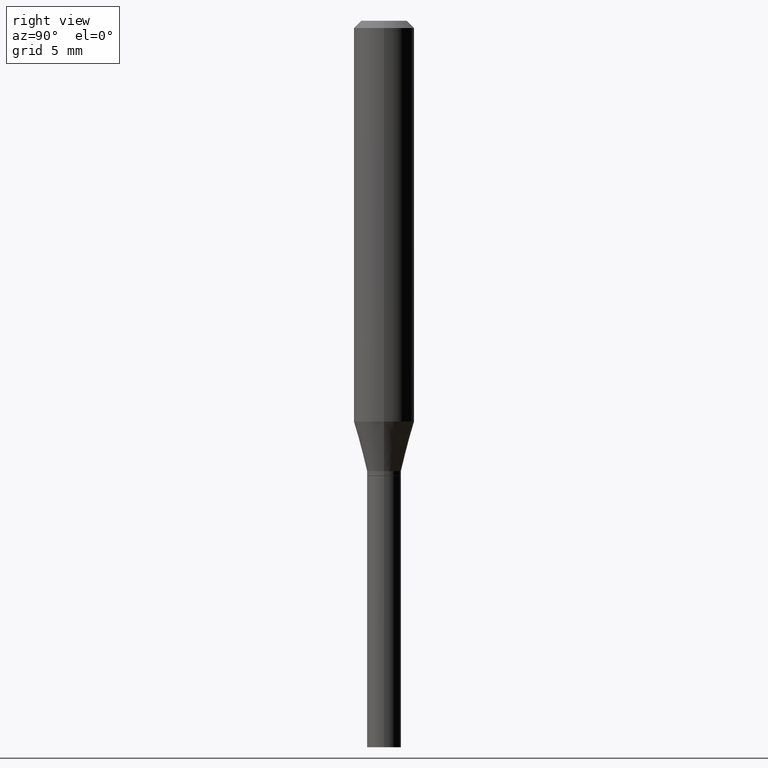
[diagram: clean part render]
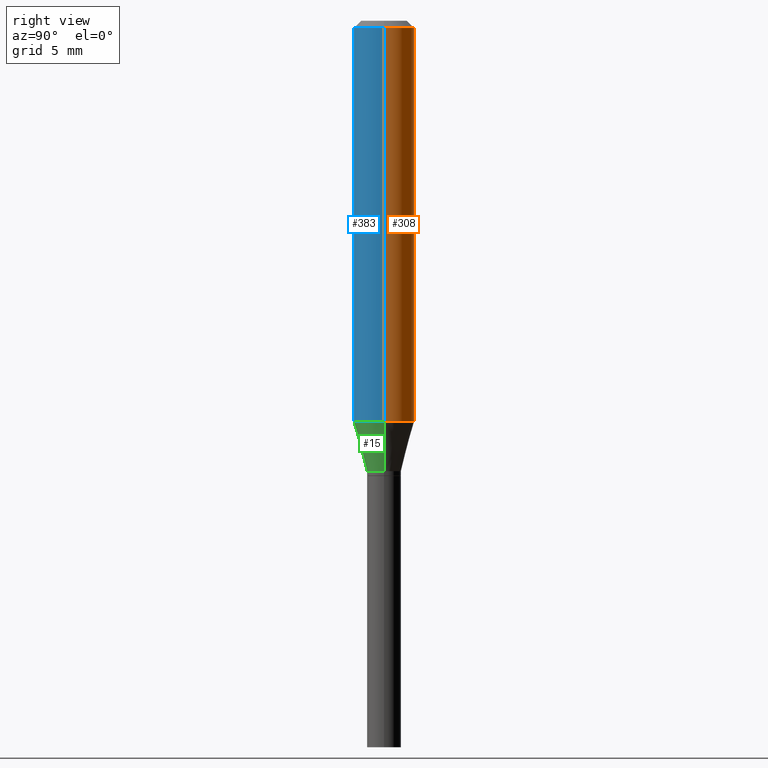
[diagram: same view with three faces highlighted in distinct colors, each labeled with its STEP entity id]
A machine part, right view with three faces highlighted in distinct colors.
Their STEP definitions:

[orange] entity #308 — the highlighted cylindrical surface (edge-blend (fillet) strip) has radius 1.5875 mm, axis along (-0, 0, 1).
#11 = VECTOR ( 'NONE', #357, 39.37007874015748143 ) ;
#19 = AXIS2_PLACEMENT_3D ( 'NONE', #141, #421, #101 ) ;
#34 = FACE_OUTER_BOUND ( 'NONE', #105, .T. ) ;
#58 = CYLINDRICAL_SURFACE ( 'NONE', #91, 0.06250000000000000000 ) ;
#63 = VERTEX_POINT ( 'NONE', #197 ) ;
#91 = AXIS2_PLACEMENT_3D ( 'NONE', #304, #133, #233 ) ;
#92 = DIRECTION ( 'NONE',  ( -2.445468806185136877E-29, 3.491481338843145188E-15, 1.000000000000000000 ) ) ;
#101 = DIRECTION ( 'NONE',  ( 1.000000000000000000, -6.982962677686266711E-15, 0.000000000000000000 ) ) ;
#105 = EDGE_LOOP ( 'NONE', ( #284, #461, #425, #114 ) ) ;
#111 = EDGE_CURVE ( 'NONE', #212, #216, #275, .T. ) ;
#114 = ORIENTED_EDGE ( 'NONE', *, *, #301, .F. ) ;
#133 = DIRECTION ( 'NONE',  ( -2.445468806185136597E-29, 3.491481338843145583E-15, 1.000000000000000000 ) ) ;
#140 = CARTESIAN_POINT ( 'NONE',  ( 0.06250000000000000000, -4.364351673553916694E-16, 3.047610484872459871E-30 ) ) ;
#141 = CARTESIAN_POINT ( 'NONE',  ( 3.668203209277705088E-31, -5.237222008264718399E-17, -0.01499999999999999944 ) ) ;
#160 = CARTESIAN_POINT ( 'NONE',  ( 2.023304109344465538E-29, -2.888742036992493542E-15, -0.8273686027918564223 ) ) ;
#192 = EDGE_CURVE ( 'NONE', #231, #63, #444, .T. ) ;
#197 = CARTESIAN_POINT ( 'NONE',  ( -0.06250000000000000000, -1.026467918687507694E-15, -0.01499999999999999944 ) ) ;
#212 = VERTEX_POINT ( 'NONE', #452 ) ;
#216 = VERTEX_POINT ( 'NONE', #347 ) ;
#231 = VERTEX_POINT ( 'NONE', #306 ) ;
#233 = DIRECTION ( 'NONE',  ( 1.000000000000000000, -6.982962677686266711E-15, 4.876176775795935793E-29 ) ) ;
#244 = CARTESIAN_POINT ( 'NONE',  ( -0.06250000000000000000, 4.440892098500626162E-16, -3.074334431409316114E-30 ) ) ;
#252 = DIRECTION ( 'NONE',  ( 1.000000000000000000, -6.982962677686262766E-15, 0.000000000000000000 ) ) ;
#254 = AXIS2_PLACEMENT_3D ( 'NONE', #160, #440, #252 ) ;
#272 = LINE ( 'NONE', #244, #11 ) ;
#275 = CIRCLE ( 'NONE', #254, 0.06250000000000000000 ) ;
#284 = ORIENTED_EDGE ( 'NONE', *, *, #111, .T. ) ;
#288 = VECTOR ( 'NONE', #92, 39.37007874015748143 ) ;
#301 = EDGE_CURVE ( 'NONE', #212, #231, #345, .T. ) ;
#304 = CARTESIAN_POINT ( 'NONE',  ( 0.000000000000000000, 0.000000000000000000, 0.000000000000000000 ) ) ;
#306 = CARTESIAN_POINT ( 'NONE',  ( 0.06250000000000000000, -4.888073874380388472E-16, -0.01499999999999999944 ) ) ;
#308 = ADVANCED_FACE ( 'NONE', ( #34 ), #58, .T. ) ;
#345 = LINE ( 'NONE', #140, #288 ) ;
#347 = CARTESIAN_POINT ( 'NONE',  ( -0.06250000000000000000, -2.444652827142430926E-15, -0.8273686027918564223 ) ) ;
#357 = DIRECTION ( 'NONE',  ( -2.445468806185136877E-29, 3.491481338843145188E-15, 1.000000000000000000 ) ) ;
#369 = EDGE_CURVE ( 'NONE', #216, #63, #272, .T. ) ;
#421 = DIRECTION ( 'NONE',  ( -2.445468806185136597E-29, 3.491481338843145583E-15, 1.000000000000000000 ) ) ;
#425 = ORIENTED_EDGE ( 'NONE', *, *, #192, .F. ) ;
#440 = DIRECTION ( 'NONE',  ( -2.445468806185136597E-29, 3.491481338843145583E-15, 1.000000000000000000 ) ) ;
#444 = CIRCLE ( 'NONE', #19, 0.06250000000000000000 ) ;
#452 = CARTESIAN_POINT ( 'NONE',  ( 0.06250000000000000000, -3.325177204347884817E-15, -0.8273686027918564223 ) ) ;
#461 = ORIENTED_EDGE ( 'NONE', *, *, #369, .T. ) ;

[blue] entity #383 — the highlighted cylindrical surface (edge-blend (fillet) strip) has radius 1.5875 mm, axis along (-0, 0, 1).
#4 = AXIS2_PLACEMENT_3D ( 'NONE', #362, #115, #394 ) ;
#11 = VECTOR ( 'NONE', #357, 39.37007874015748143 ) ;
#24 = DIRECTION ( 'NONE',  ( 1.000000000000000000, -6.982962677686266711E-15, 0.000000000000000000 ) ) ;
#43 = EDGE_CURVE ( 'NONE', #216, #212, #108, .T. ) ;
#63 = VERTEX_POINT ( 'NONE', #197 ) ;
#83 = EDGE_LOOP ( 'NONE', ( #99, #277, #356, #138 ) ) ;
#85 = DIRECTION ( 'NONE',  ( -2.445468806185136597E-29, 3.491481338843145583E-15, 1.000000000000000000 ) ) ;
#92 = DIRECTION ( 'NONE',  ( -2.445468806185136877E-29, 3.491481338843145188E-15, 1.000000000000000000 ) ) ;
#99 = ORIENTED_EDGE ( 'NONE', *, *, #369, .F. ) ;
#108 = CIRCLE ( 'NONE', #261, 0.06250000000000000000 ) ;
#115 = DIRECTION ( 'NONE',  ( -2.445468806185136597E-29, 3.491481338843145583E-15, 1.000000000000000000 ) ) ;
#134 = CARTESIAN_POINT ( 'NONE',  ( 3.668203209277705088E-31, -5.237222008264718399E-17, -0.01499999999999999944 ) ) ;
#138 = ORIENTED_EDGE ( 'NONE', *, *, #226, .F. ) ;
#140 = CARTESIAN_POINT ( 'NONE',  ( 0.06250000000000000000, -4.364351673553916694E-16, 3.047610484872459871E-30 ) ) ;
#197 = CARTESIAN_POINT ( 'NONE',  ( -0.06250000000000000000, -1.026467918687507694E-15, -0.01499999999999999944 ) ) ;
#199 = DIRECTION ( 'NONE',  ( -2.445468806185136597E-29, 3.491481338843145583E-15, 1.000000000000000000 ) ) ;
#212 = VERTEX_POINT ( 'NONE', #452 ) ;
#216 = VERTEX_POINT ( 'NONE', #347 ) ;
#221 = DIRECTION ( 'NONE',  ( 1.000000000000000000, -6.982962677686262766E-15, 0.000000000000000000 ) ) ;
#226 = EDGE_CURVE ( 'NONE', #63, #231, #241, .T. ) ;
#231 = VERTEX_POINT ( 'NONE', #306 ) ;
#241 = CIRCLE ( 'NONE', #420, 0.06250000000000000000 ) ;
#244 = CARTESIAN_POINT ( 'NONE',  ( -0.06250000000000000000, 4.440892098500626162E-16, -3.074334431409316114E-30 ) ) ;
#258 = CARTESIAN_POINT ( 'NONE',  ( 2.023304109344465538E-29, -2.888742036992493542E-15, -0.8273686027918564223 ) ) ;
#261 = AXIS2_PLACEMENT_3D ( 'NONE', #258, #85, #221 ) ;
#272 = LINE ( 'NONE', #244, #11 ) ;
#277 = ORIENTED_EDGE ( 'NONE', *, *, #43, .T. ) ;
#288 = VECTOR ( 'NONE', #92, 39.37007874015748143 ) ;
#301 = EDGE_CURVE ( 'NONE', #212, #231, #345, .T. ) ;
#306 = CARTESIAN_POINT ( 'NONE',  ( 0.06250000000000000000, -4.888073874380388472E-16, -0.01499999999999999944 ) ) ;
#327 = CYLINDRICAL_SURFACE ( 'NONE', #4, 0.06250000000000000000 ) ;
#345 = LINE ( 'NONE', #140, #288 ) ;
#347 = CARTESIAN_POINT ( 'NONE',  ( -0.06250000000000000000, -2.444652827142430926E-15, -0.8273686027918564223 ) ) ;
#356 = ORIENTED_EDGE ( 'NONE', *, *, #301, .T. ) ;
#357 = DIRECTION ( 'NONE',  ( -2.445468806185136877E-29, 3.491481338843145188E-15, 1.000000000000000000 ) ) ;
#362 = CARTESIAN_POINT ( 'NONE',  ( 0.000000000000000000, 0.000000000000000000, 0.000000000000000000 ) ) ;
#369 = EDGE_CURVE ( 'NONE', #216, #63, #272, .T. ) ;
#383 = ADVANCED_FACE ( 'NONE', ( #435 ), #327, .T. ) ;
#394 = DIRECTION ( 'NONE',  ( 1.000000000000000000, -6.982962677686266711E-15, 4.876176775795935793E-29 ) ) ;
#420 = AXIS2_PLACEMENT_3D ( 'NONE', #134, #199, #24 ) ;
#435 = FACE_OUTER_BOUND ( 'NONE', #83, .T. ) ;
#452 = CARTESIAN_POINT ( 'NONE',  ( 0.06250000000000000000, -3.325177204347884817E-15, -0.8273686027918564223 ) ) ;

[green] entity #15 — the highlighted conical surface has half-angle 15 deg.
#6 = EDGE_CURVE ( 'NONE', #7, #212, #213, .T. ) ;
#7 = VERTEX_POINT ( 'NONE', #243 ) ;
#15 = ADVANCED_FACE ( 'NONE', ( #219 ), #326, .T. ) ;
#31 = CARTESIAN_POINT ( 'NONE',  ( 2.274285989752177181E-29, -3.247077645124125222E-15, -0.9300000000000000488 ) ) ;
#38 = VERTEX_POINT ( 'NONE', #321 ) ;
#43 = EDGE_CURVE ( 'NONE', #216, #212, #108, .T. ) ;
#74 = DIRECTION ( 'NONE',  ( 1.000000000000000000, -6.982962677686265922E-15, 0.000000000000000000 ) ) ;
#85 = DIRECTION ( 'NONE',  ( -2.445468806185136597E-29, 3.491481338843145583E-15, 1.000000000000000000 ) ) ;
#108 = CIRCLE ( 'NONE', #261, 0.06250000000000000000 ) ;
#145 = EDGE_CURVE ( 'NONE', #38, #216, #399, .T. ) ;
#166 = DIRECTION ( 'NONE',  ( -2.445468806185136597E-29, 3.491481338843145583E-15, 1.000000000000000000 ) ) ;
#183 = ORIENTED_EDGE ( 'NONE', *, *, #6, .T. ) ;
#210 = AXIS2_PLACEMENT_3D ( 'NONE', #31, #166, #312 ) ;
#212 = VERTEX_POINT ( 'NONE', #452 ) ;
#213 = LINE ( 'NONE', #388, #338 ) ;
#216 = VERTEX_POINT ( 'NONE', #347 ) ;
#219 = FACE_OUTER_BOUND ( 'NONE', #285, .T. ) ;
#221 = DIRECTION ( 'NONE',  ( 1.000000000000000000, -6.982962677686262766E-15, 0.000000000000000000 ) ) ;
#243 = CARTESIAN_POINT ( 'NONE',  ( 0.03500000000000005884, -3.491481338843145188E-15, -0.9300000000000000488 ) ) ;
#248 = DIRECTION ( 'NONE',  ( 0.2588190451025214611, 1.565188264969621573E-15, 0.9659258262890682012 ) ) ;
#255 = CARTESIAN_POINT ( 'NONE',  ( -0.03500000000000005884, -2.998387687608089936E-15, -0.9300000000000000488 ) ) ;
#258 = CARTESIAN_POINT ( 'NONE',  ( 2.023304109344465538E-29, -2.888742036992493542E-15, -0.8273686027918564223 ) ) ;
#261 = AXIS2_PLACEMENT_3D ( 'NONE', #258, #85, #221 ) ;
#285 = EDGE_LOOP ( 'NONE', ( #443, #322, #183, #429 ) ) ;
#305 = AXIS2_PLACEMENT_3D ( 'NONE', #360, #353, #74 ) ;
#312 = DIRECTION ( 'NONE',  ( 1.000000000000000000, -6.982962677686265922E-15, 0.000000000000000000 ) ) ;
#321 = CARTESIAN_POINT ( 'NONE',  ( -0.03500000000000005884, -2.721520257375260628E-15, -0.9300000000000000488 ) ) ;
#322 = ORIENTED_EDGE ( 'NONE', *, *, #359, .T. ) ;
#326 = CONICAL_SURFACE ( 'NONE', #305, 0.03500000000000005884, 0.2617993877991501295 ) ;
#338 = VECTOR ( 'NONE', #248, 39.37007874015747433 ) ;
#347 = CARTESIAN_POINT ( 'NONE',  ( -0.06250000000000000000, -2.444652827142430926E-15, -0.8273686027918564223 ) ) ;
#353 = DIRECTION ( 'NONE',  ( -2.445468806185136597E-29, 3.491481338843145583E-15, 1.000000000000000000 ) ) ;
#359 = EDGE_CURVE ( 'NONE', #38, #7, #411, .T. ) ;
#360 = CARTESIAN_POINT ( 'NONE',  ( 2.274285989752177181E-29, -3.247077645124125222E-15, -0.9300000000000000488 ) ) ;
#361 = VECTOR ( 'NONE', #404, 39.37007874015747433 ) ;
#388 = CARTESIAN_POINT ( 'NONE',  ( 0.03500000000000005884, -3.491481338843145188E-15, -0.9300000000000000488 ) ) ;
#399 = LINE ( 'NONE', #255, #361 ) ;
#404 = DIRECTION ( 'NONE',  ( -0.2588190451025214611, 5.211531920934551042E-15, 0.9659258262890682012 ) ) ;
#411 = CIRCLE ( 'NONE', #210, 0.03500000000000005884 ) ;
#429 = ORIENTED_EDGE ( 'NONE', *, *, #43, .F. ) ;
#443 = ORIENTED_EDGE ( 'NONE', *, *, #145, .F. ) ;
#452 = CARTESIAN_POINT ( 'NONE',  ( 0.06250000000000000000, -3.325177204347884817E-15, -0.8273686027918564223 ) ) ;